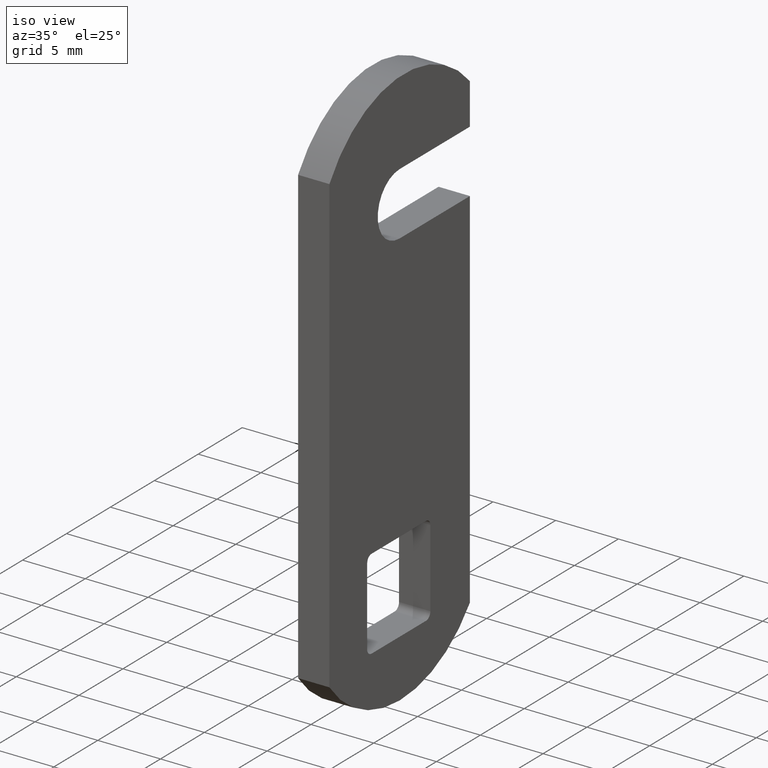
[diagram: clean part render]
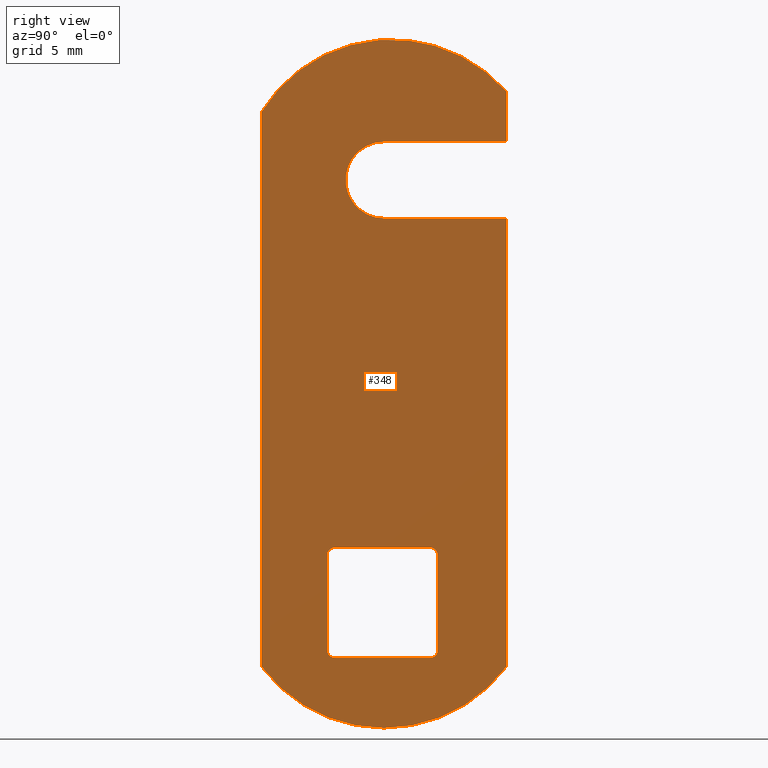
[diagram: tour spotlight — one face highlighted and labeled with its STEP entity id]
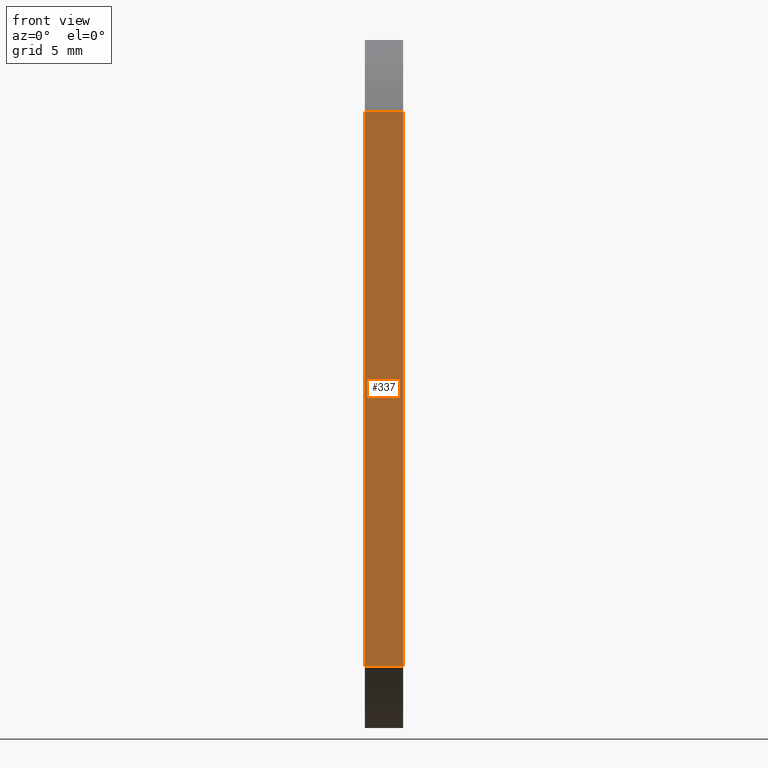
[diagram: tour spotlight — one face highlighted and labeled with its STEP entity id]
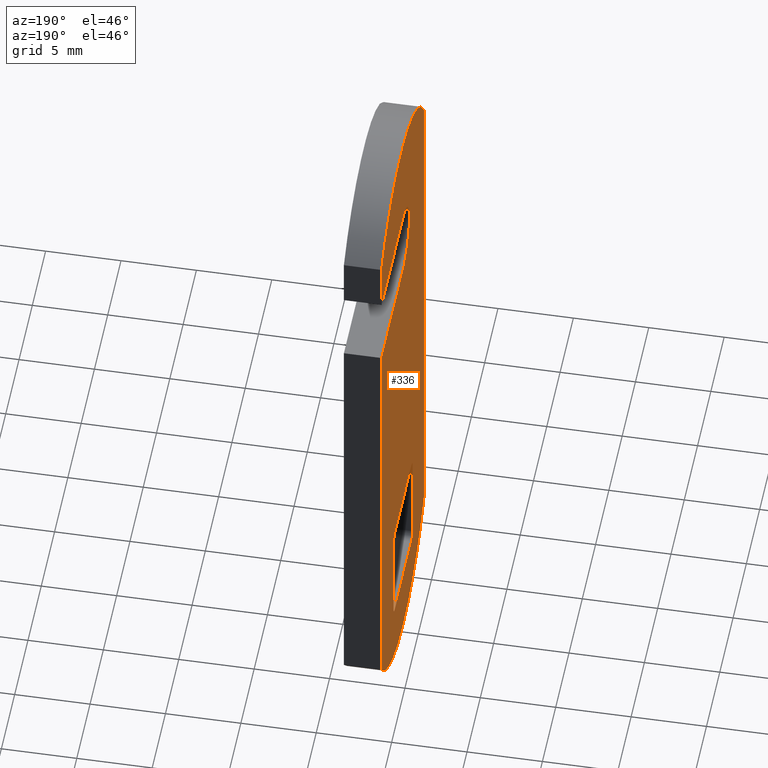
[diagram: tour spotlight — one face highlighted and labeled with its STEP entity id]
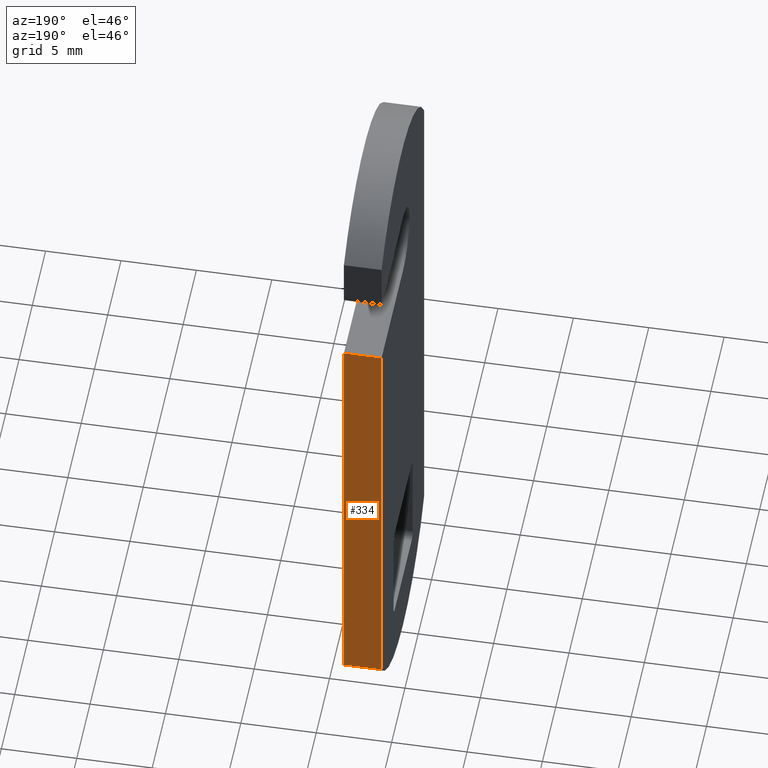
[diagram: tour spotlight — one face highlighted and labeled with its STEP entity id]
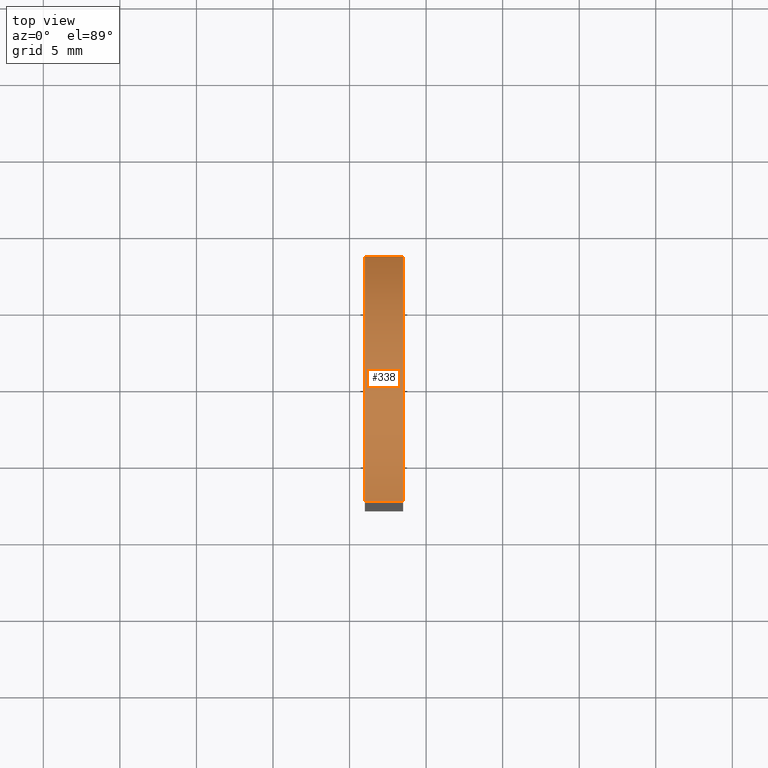
[diagram: tour spotlight — one face highlighted and labeled with its STEP entity id]
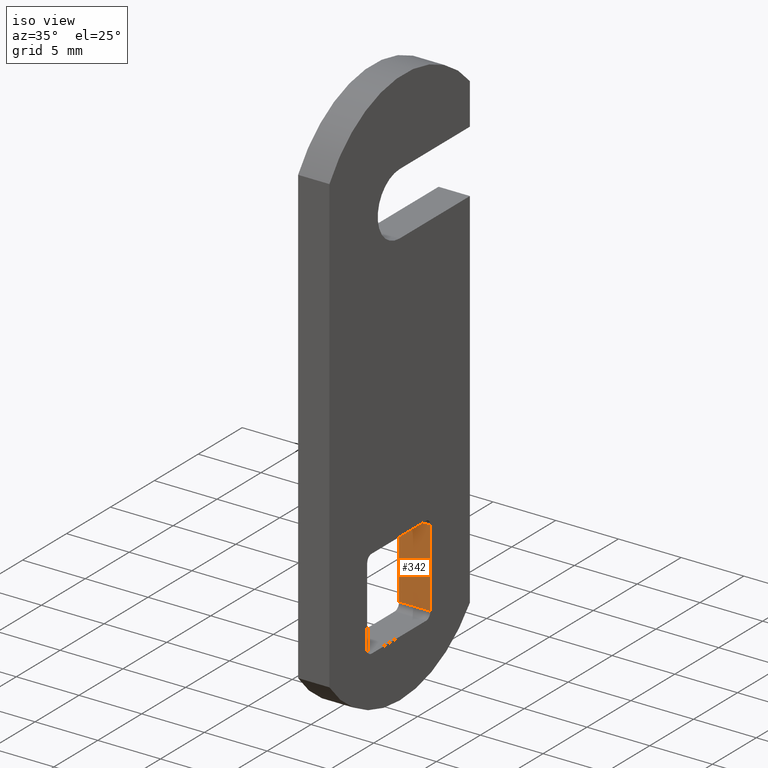
[diagram: tour spotlight — one face highlighted and labeled with its STEP entity id]
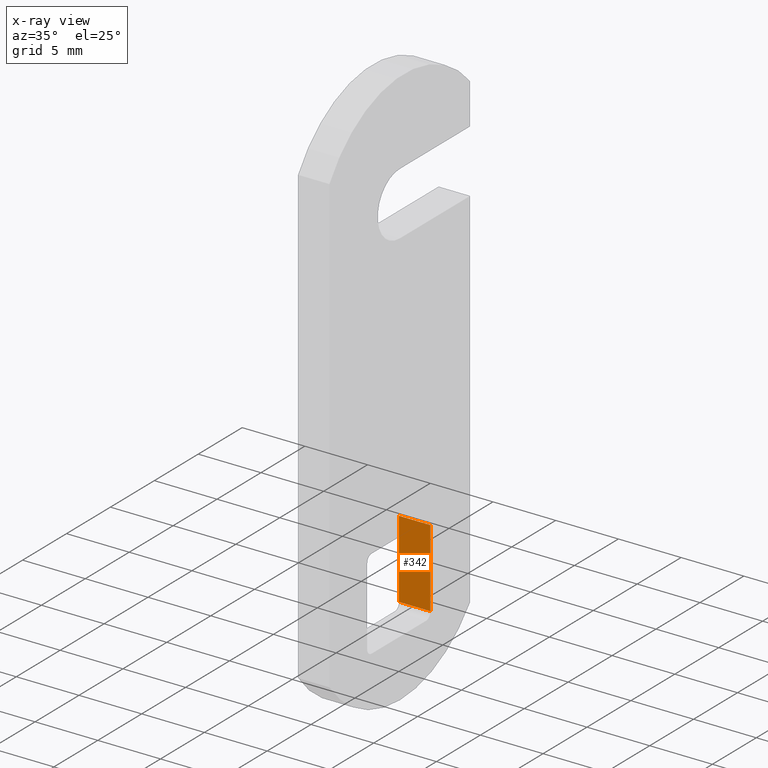
[diagram: x-ray of the same camera — body ghosted, this tour face saturated]
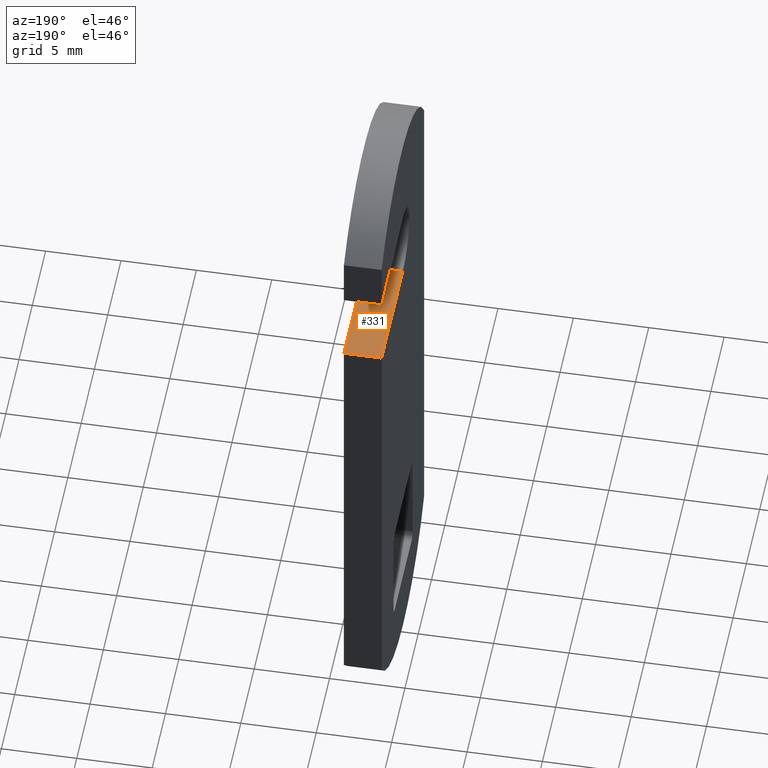
[diagram: tour spotlight — one face highlighted and labeled with its STEP entity id]
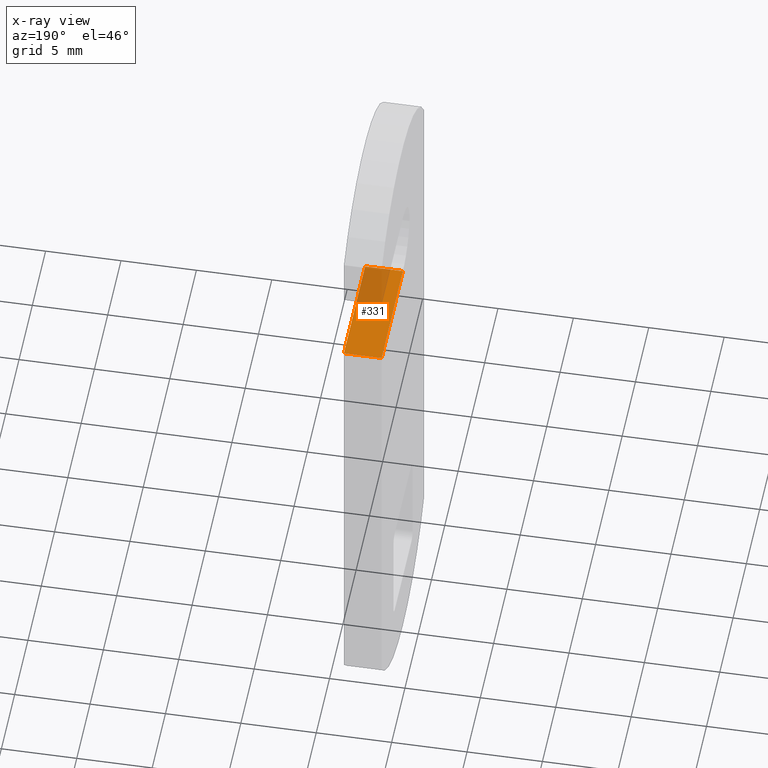
[diagram: x-ray of the same camera — body ghosted, this tour face saturated]
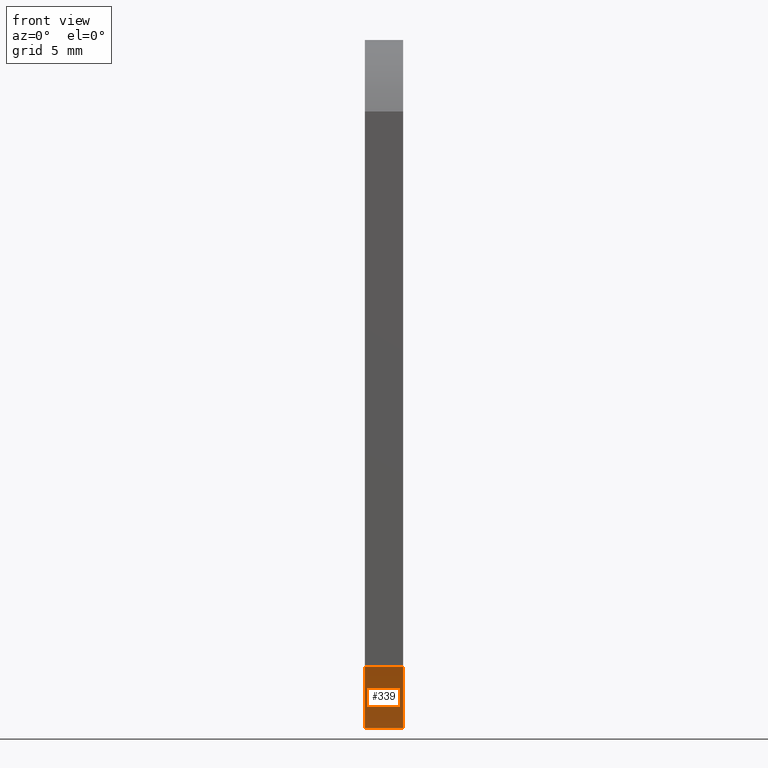
[diagram: tour spotlight — one face highlighted and labeled with its STEP entity id]
A machine part: a face-by-face anatomy tour. The part has 18 B-rep faces; the first image is the clean iso view, then the 8 largest visible faces are spotlighted one at a time (largest first), each with its STEP entity span.

Face 1 — right view, entity #348. In plain terms, the highlighted planar face has unit normal (-1, 0, 0).
Definition (entity closure, byte-faithful):
#16=FACE_BOUND('',#75,.T.);
#18=CIRCLE('',#355,2.5);
#25=CIRCLE('',#367,10.);
#26=CIRCLE('',#369,10.);
#27=CIRCLE('',#372,0.5);
#28=CIRCLE('',#375,0.5);
#29=CIRCLE('',#378,0.5);
#30=CIRCLE('',#381,0.5);
#55=FACE_OUTER_BOUND('',#74,.T.);
#74=EDGE_LOOP('',(#304,#305,#306,#307,#308,#309,#310,#311));
#75=EDGE_LOOP('',(#312,#313,#314,#315,#316,#317,#318,#319));
#78=LINE('',#491,#112);
#82=LINE('',#500,#116);
#84=LINE('',#507,#118);
#89=LINE('',#516,#123);
#95=LINE('',#542,#129);
#98=LINE('',#552,#132);
#102=LINE('',#561,#136);
#105=LINE('',#569,#139);
#108=LINE('',#577,#142);
#112=VECTOR('',#389,8.);
#116=VECTOR('',#395,8.);
#118=VECTOR('',#405,29.2958172199094);
#123=VECTOR('',#412,3.27849939249741);
#129=VECTOR('',#434,36.2674548355886);
#132=VECTOR('',#447,6.19999999999999);
#136=VECTOR('',#457,6.2);
#139=VECTOR('',#466,6.19999999999999);
#142=VECTOR('',#475,6.2);
#146=VERTEX_POINT('',#488);
#147=VERTEX_POINT('',#490);
#150=VERTEX_POINT('',#497);
#151=VERTEX_POINT('',#499);
#152=VERTEX_POINT('',#506);
#155=VERTEX_POINT('',#514);
#166=VERTEX_POINT('',#540);
#167=VERTEX_POINT('',#541);
#168=VERTEX_POINT('',#550);
#169=VERTEX_POINT('',#551);
#170=VERTEX_POINT('',#556);
#171=VERTEX_POINT('',#560);
#172=VERTEX_POINT('',#564);
#173=VERTEX_POINT('',#568);
#174=VERTEX_POINT('',#572);
#175=VERTEX_POINT('',#576);
#178=EDGE_CURVE('',#147,#146,#78,.T.);
#182=EDGE_CURVE('',#151,#150,#82,.T.);
#185=EDGE_CURVE('',#146,#151,#18,.T.);
#186=EDGE_CURVE('',#147,#152,#84,.T.);
#191=EDGE_CURVE('',#155,#150,#89,.T.);
#203=EDGE_CURVE('',#166,#167,#95,.T.);
#206=EDGE_CURVE('',#167,#155,#25,.T.);
#207=EDGE_CURVE('',#152,#166,#26,.T.);
#208=EDGE_CURVE('',#168,#169,#98,.T.);
#211=EDGE_CURVE('',#169,#170,#27,.T.);
#213=EDGE_CURVE('',#170,#171,#102,.T.);
#215=EDGE_CURVE('',#171,#172,#28,.T.);
#217=EDGE_CURVE('',#172,#173,#105,.T.);
#219=EDGE_CURVE('',#173,#174,#29,.T.);
#221=EDGE_CURVE('',#174,#175,#108,.T.);
#223=EDGE_CURVE('',#175,#168,#30,.T.);
#304=ORIENTED_EDGE('',*,*,#182,.T.);
#305=ORIENTED_EDGE('',*,*,#191,.F.);
#306=ORIENTED_EDGE('',*,*,#206,.F.);
#307=ORIENTED_EDGE('',*,*,#203,.F.);
#308=ORIENTED_EDGE('',*,*,#207,.F.);
#309=ORIENTED_EDGE('',*,*,#186,.F.);
#310=ORIENTED_EDGE('',*,*,#178,.T.);
#311=ORIENTED_EDGE('',*,*,#185,.T.);
#312=ORIENTED_EDGE('',*,*,#223,.F.);
#313=ORIENTED_EDGE('',*,*,#221,.F.);
#314=ORIENTED_EDGE('',*,*,#219,.F.);
#315=ORIENTED_EDGE('',*,*,#217,.F.);
#316=ORIENTED_EDGE('',*,*,#215,.F.);
#317=ORIENTED_EDGE('',*,*,#213,.F.);
#318=ORIENTED_EDGE('',*,*,#211,.F.);
#319=ORIENTED_EDGE('',*,*,#208,.F.);
#330=PLANE('',#382);
#348=ADVANCED_FACE('',(#55,#16),#330,.F.);
#355=AXIS2_PLACEMENT_3D('',#504,#401,#402);
#367=AXIS2_PLACEMENT_3D('',#546,#439,#440);
#369=AXIS2_PLACEMENT_3D('',#548,#443,#444);
#372=AXIS2_PLACEMENT_3D('',#557,#452,#453);
#375=AXIS2_PLACEMENT_3D('',#565,#461,#462);
#378=AXIS2_PLACEMENT_3D('',#573,#470,#471);
#381=AXIS2_PLACEMENT_3D('',#580,#479,#480);
#382=AXIS2_PLACEMENT_3D('',#581,#481,#482);
#389=DIRECTION('',(0.,-1.,-8.32667268468864E-16));
#395=DIRECTION('',(0.,1.,8.32667268468864E-16));
#401=DIRECTION('center_axis',(-1.,0.,0.));
#402=DIRECTION('ref_axis',(0.,-1.0547118733939E-15,1.));
#405=DIRECTION('',(0.,0.,-1.));
#412=DIRECTION('',(0.,0.,-1.));
#434=DIRECTION('',(0.,0.,1.));
#439=DIRECTION('center_axis',(-1.,0.,0.));
#440=DIRECTION('ref_axis',(0.,0.,1.));
#443=DIRECTION('center_axis',(-1.,0.,0.));
#444=DIRECTION('ref_axis',(0.,0.,1.));
#447=DIRECTION('',(0.,1.,0.));
#452=DIRECTION('center_axis',(1.,0.,0.));
#453=DIRECTION('ref_axis',(0.,0.,1.));
#457=DIRECTION('',(0.,0.,1.));
#461=DIRECTION('center_axis',(1.,0.,0.));
#462=DIRECTION('ref_axis',(0.,0.,1.));
#466=DIRECTION('',(0.,-1.,0.));
#470=DIRECTION('center_axis',(1.,0.,0.));
#471=DIRECTION('ref_axis',(0.,0.,1.));
#475=DIRECTION('',(0.,0.,-1.));
#479=DIRECTION('center_axis',(1.,0.,0.));
#480=DIRECTION('ref_axis',(0.,0.,1.));
#481=DIRECTION('center_axis',(-1.,0.,0.));
#482=DIRECTION('ref_axis',(0.,0.,1.));
#488=CARTESIAN_POINT('',(-31.5000000687006,0.0995897962627374,25.1));
#490=CARTESIAN_POINT('',(-31.5000000687006,8.09958979626274,25.1));
#491=CARTESIAN_POINT('',(-31.5000000687006,-0.700470203881877,25.1));
#497=CARTESIAN_POINT('',(-31.5000000687006,8.09958979626273,30.1));
#499=CARTESIAN_POINT('',(-31.5000000687006,0.0995897962627332,30.1));
#500=CARTESIAN_POINT('',(-31.5000000687006,-4.70047020388188,30.1));
#504=CARTESIAN_POINT('Origin',(-31.5000000687006,0.0995897962627358,27.6));
#506=CARTESIAN_POINT('',(-31.5000000687006,8.09958979626276,-4.19581721990934));
#507=CARTESIAN_POINT('',(-31.5000000687006,8.09958979626273,27.8041827800906));
#514=CARTESIAN_POINT('',(-31.5000000687006,8.09958979626273,33.3784993924974));
#516=CARTESIAN_POINT('',(-31.5000000687006,8.09958979626273,27.8041827800906));
#540=CARTESIAN_POINT('',(-31.5000000687006,-7.9004102037373,-4.19581721990936));
#541=CARTESIAN_POINT('',(-31.5000000687006,-7.9004102037373,32.0716376156792));
#542=CARTESIAN_POINT('',(-31.5000000687006,-7.9004102037373,-4.19581721990936));
#546=CARTESIAN_POINT('Origin',(-31.5000000687006,0.585131142116536,26.7805518983802));
#548=CARTESIAN_POINT('Origin',(-31.5000000687006,0.099589796262734,1.80418278009063));
#550=CARTESIAN_POINT('',(-31.5000000687006,-3.10000000000002,-3.6));
#551=CARTESIAN_POINT('',(-31.5000000687006,3.09999999999997,-3.6));
#552=CARTESIAN_POINT('',(-31.5000000687006,-3.10000000000002,-3.6));
#556=CARTESIAN_POINT('',(-31.5000000687006,3.59999999999997,-3.10000000000001));
#557=CARTESIAN_POINT('Origin',(-31.5000000687006,3.09999999999997,-3.1));
#560=CARTESIAN_POINT('',(-31.5000000687006,3.59999999999997,3.09999999999999));
#561=CARTESIAN_POINT('',(-31.5000000687006,3.59999999999997,-3.10000000000001));
#564=CARTESIAN_POINT('',(-31.5000000687006,3.09999999999997,3.59999999999999));
#565=CARTESIAN_POINT('Origin',(-31.5000000687006,3.09999999999997,3.09999999999999));
#568=CARTESIAN_POINT('',(-31.5000000687006,-3.10000000000002,3.59999999999999));
#569=CARTESIAN_POINT('',(-31.5000000687006,3.09999999999997,3.59999999999999));
#572=CARTESIAN_POINT('',(-31.5000000687006,-3.60000000000002,3.10000000000001));
#573=CARTESIAN_POINT('Origin',(-31.5000000687006,-3.10000000000002,3.09999999999999));
#576=CARTESIAN_POINT('',(-31.5000000687006,-3.60000000000002,-3.1));
#577=CARTESIAN_POINT('',(-31.5000000687006,-3.60000000000002,3.10000000000001));
#580=CARTESIAN_POINT('Origin',(-31.5000000687006,-3.10000000000002,-3.1));
#581=CARTESIAN_POINT('Origin',(-31.5000000687006,-9.50053020402646,-12.1959372202357));

Face 2 — front view, entity #337. In plain terms, the highlighted planar face has unit normal (0, -1, 0).
Definition (entity closure, byte-faithful):
#44=FACE_OUTER_BOUND('',#63,.T.);
#63=EDGE_LOOP('',(#260,#261,#262,#263));
#90=LINE('',#521,#124);
#95=LINE('',#542,#129);
#96=LINE('',#543,#130);
#97=LINE('',#544,#131);
#124=VECTOR('',#417,36.2674548355886);
#129=VECTOR('',#434,36.2674548355886);
#130=VECTOR('',#435,2.5);
#131=VECTOR('',#436,2.5);
#156=VERTEX_POINT('',#518);
#157=VERTEX_POINT('',#520);
#166=VERTEX_POINT('',#540);
#167=VERTEX_POINT('',#541);
#193=EDGE_CURVE('',#156,#157,#90,.T.);
#203=EDGE_CURVE('',#166,#167,#95,.T.);
#204=EDGE_CURVE('',#167,#157,#96,.F.);
#205=EDGE_CURVE('',#166,#156,#97,.T.);
#260=ORIENTED_EDGE('',*,*,#203,.T.);
#261=ORIENTED_EDGE('',*,*,#204,.T.);
#262=ORIENTED_EDGE('',*,*,#193,.F.);
#263=ORIENTED_EDGE('',*,*,#205,.F.);
#325=PLANE('',#365);
#337=ADVANCED_FACE('',(#44),#325,.T.);
#365=AXIS2_PLACEMENT_3D('',#539,#432,#433);
#417=DIRECTION('',(0.,0.,1.));
#432=DIRECTION('center_axis',(0.,-1.,0.));
#433=DIRECTION('ref_axis',(0.,0.,-1.));
#434=DIRECTION('',(0.,0.,1.));
#435=DIRECTION('',(1.,0.,0.));
#436=DIRECTION('',(-1.,0.,0.));
#518=CARTESIAN_POINT('',(-34.0000000687006,-7.9004102037373,-4.19581721990936));
#520=CARTESIAN_POINT('',(-34.0000000687006,-7.9004102037373,32.0716376156792));
#521=CARTESIAN_POINT('',(-34.0000000687006,-7.9004102037373,-4.19581721990936));
#539=CARTESIAN_POINT('Origin',(-31.5000000687006,-7.9004102037373,-4.19581721990936));
#540=CARTESIAN_POINT('',(-31.5000000687006,-7.9004102037373,-4.19581721990936));
#541=CARTESIAN_POINT('',(-31.5000000687006,-7.9004102037373,32.0716376156792));
#542=CARTESIAN_POINT('',(-31.5000000687006,-7.9004102037373,-4.19581721990936));
#543=CARTESIAN_POINT('',(-31.5000000687006,-7.9004102037373,32.0716376156792));
#544=CARTESIAN_POINT('',(-31.5000000687006,-7.9004102037373,-4.19581721990936));

Face 3 — auxiliary view, entity #336. In plain terms, the highlighted planar face has unit normal (-1, 0, 0).
Definition (entity closure, byte-faithful):
#15=FACE_BOUND('',#62,.T.);
#17=CIRCLE('',#354,2.5);
#19=CIRCLE('',#359,10.);
#20=CIRCLE('',#360,10.);
#21=CIRCLE('',#361,0.5);
#22=CIRCLE('',#362,0.5);
#23=CIRCLE('',#363,0.5);
#24=CIRCLE('',#364,0.5);
#43=FACE_OUTER_BOUND('',#61,.T.);
#61=EDGE_LOOP('',(#244,#245,#246,#247,#248,#249,#250,#251));
#62=EDGE_LOOP('',(#252,#253,#254,#255,#256,#257,#258,#259));
#76=LINE('',#487,#110);
#80=LINE('',#496,#114);
#86=LINE('',#510,#120);
#87=LINE('',#513,#121);
#90=LINE('',#521,#124);
#91=LINE('',#525,#125);
#92=LINE('',#529,#126);
#93=LINE('',#533,#127);
#94=LINE('',#537,#128);
#110=VECTOR('',#387,8.);
#114=VECTOR('',#393,8.);
#120=VECTOR('',#407,29.2958172199094);
#121=VECTOR('',#410,3.27849939249741);
#124=VECTOR('',#417,36.2674548355886);
#125=VECTOR('',#420,6.19999999999999);
#126=VECTOR('',#423,6.2);
#127=VECTOR('',#426,6.19999999999999);
#128=VECTOR('',#429,6.2);
#144=VERTEX_POINT('',#485);
#145=VERTEX_POINT('',#486);
#148=VERTEX_POINT('',#494);
#149=VERTEX_POINT('',#495);
#153=VERTEX_POINT('',#508);
#154=VERTEX_POINT('',#512);
#156=VERTEX_POINT('',#518);
#157=VERTEX_POINT('',#520);
#158=VERTEX_POINT('',#523);
#159=VERTEX_POINT('',#524);
#160=VERTEX_POINT('',#526);
#161=VERTEX_POINT('',#528);
#162=VERTEX_POINT('',#530);
#163=VERTEX_POINT('',#532);
#164=VERTEX_POINT('',#534);
#165=VERTEX_POINT('',#536);
#176=EDGE_CURVE('',#144,#145,#76,.T.);
#180=EDGE_CURVE('',#148,#149,#80,.T.);
#184=EDGE_CURVE('',#149,#144,#17,.T.);
#188=EDGE_CURVE('',#145,#153,#86,.T.);
#189=EDGE_CURVE('',#154,#148,#87,.T.);
#192=EDGE_CURVE('',#153,#156,#19,.T.);
#193=EDGE_CURVE('',#156,#157,#90,.T.);
#194=EDGE_CURVE('',#157,#154,#20,.T.);
#195=EDGE_CURVE('',#158,#159,#91,.T.);
#196=EDGE_CURVE('',#159,#160,#21,.T.);
#197=EDGE_CURVE('',#160,#161,#92,.T.);
#198=EDGE_CURVE('',#161,#162,#22,.T.);
#199=EDGE_CURVE('',#162,#163,#93,.T.);
#200=EDGE_CURVE('',#163,#164,#23,.T.);
#201=EDGE_CURVE('',#164,#165,#94,.T.);
#202=EDGE_CURVE('',#165,#158,#24,.T.);
#244=ORIENTED_EDGE('',*,*,#180,.T.);
#245=ORIENTED_EDGE('',*,*,#184,.T.);
#246=ORIENTED_EDGE('',*,*,#176,.T.);
#247=ORIENTED_EDGE('',*,*,#188,.T.);
#248=ORIENTED_EDGE('',*,*,#192,.T.);
#249=ORIENTED_EDGE('',*,*,#193,.T.);
#250=ORIENTED_EDGE('',*,*,#194,.T.);
#251=ORIENTED_EDGE('',*,*,#189,.T.);
#252=ORIENTED_EDGE('',*,*,#195,.T.);
#253=ORIENTED_EDGE('',*,*,#196,.T.);
#254=ORIENTED_EDGE('',*,*,#197,.T.);
#255=ORIENTED_EDGE('',*,*,#198,.T.);
#256=ORIENTED_EDGE('',*,*,#199,.T.);
#257=ORIENTED_EDGE('',*,*,#200,.T.);
#258=ORIENTED_EDGE('',*,*,#201,.T.);
#259=ORIENTED_EDGE('',*,*,#202,.T.);
#324=PLANE('',#358);
#336=ADVANCED_FACE('',(#43,#15),#324,.T.);
#354=AXIS2_PLACEMENT_3D('',#503,#399,#400);
#358=AXIS2_PLACEMENT_3D('',#517,#413,#414);
#359=AXIS2_PLACEMENT_3D('',#519,#415,#416);
#360=AXIS2_PLACEMENT_3D('',#522,#418,#419);
#361=AXIS2_PLACEMENT_3D('',#527,#421,#422);
#362=AXIS2_PLACEMENT_3D('',#531,#424,#425);
#363=AXIS2_PLACEMENT_3D('',#535,#427,#428);
#364=AXIS2_PLACEMENT_3D('',#538,#430,#431);
#387=DIRECTION('',(0.,1.,8.32667268468864E-16));
#393=DIRECTION('',(0.,-1.,-8.32667268468864E-16));
#399=DIRECTION('center_axis',(1.,0.,0.));
#400=DIRECTION('ref_axis',(0.,-1.0547118733939E-15,1.));
#407=DIRECTION('',(0.,0.,-1.));
#410=DIRECTION('',(0.,0.,-1.));
#413=DIRECTION('center_axis',(-1.,0.,0.));
#414=DIRECTION('ref_axis',(0.,0.,1.));
#415=DIRECTION('center_axis',(-1.,0.,0.));
#416=DIRECTION('ref_axis',(0.,0.,1.));
#417=DIRECTION('',(0.,0.,1.));
#418=DIRECTION('center_axis',(-1.,0.,0.));
#419=DIRECTION('ref_axis',(0.,0.,1.));
#420=DIRECTION('',(0.,1.,0.));
#421=DIRECTION('center_axis',(1.,0.,0.));
#422=DIRECTION('ref_axis',(0.,0.,1.));
#423=DIRECTION('',(0.,0.,1.));
#424=DIRECTION('center_axis',(1.,0.,0.));
#425=DIRECTION('ref_axis',(0.,0.,1.));
#426=DIRECTION('',(0.,-1.,0.));
#427=DIRECTION('center_axis',(1.,0.,0.));
#428=DIRECTION('ref_axis',(0.,0.,1.));
#429=DIRECTION('',(0.,0.,-1.));
#430=DIRECTION('center_axis',(1.,0.,0.));
#431=DIRECTION('ref_axis',(0.,0.,1.));
#485=CARTESIAN_POINT('',(-34.0000000687006,0.0995897962627374,25.1));
#486=CARTESIAN_POINT('',(-34.0000000687006,8.09958979626274,25.1));
#487=CARTESIAN_POINT('',(-34.0000000687006,-0.700470203881877,25.1));
#494=CARTESIAN_POINT('',(-34.0000000687006,8.09958979626273,30.1));
#495=CARTESIAN_POINT('',(-34.0000000687006,0.0995897962627332,30.1));
#496=CARTESIAN_POINT('',(-34.0000000687006,-4.70047020388188,30.1));
#503=CARTESIAN_POINT('Origin',(-34.0000000687006,0.0995897962627358,27.6));
#508=CARTESIAN_POINT('',(-34.0000000687006,8.09958979626276,-4.19581721990934));
#510=CARTESIAN_POINT('',(-34.0000000687006,8.09958979626273,27.8041827800906));
#512=CARTESIAN_POINT('',(-34.0000000687006,8.09958979626273,33.3784993924974));
#513=CARTESIAN_POINT('',(-34.0000000687006,8.09958979626273,27.8041827800906));
#517=CARTESIAN_POINT('Origin',(-34.0000000687006,-9.50053020402646,-12.1959372202357));
#518=CARTESIAN_POINT('',(-34.0000000687006,-7.9004102037373,-4.19581721990936));
#519=CARTESIAN_POINT('Origin',(-34.0000000687006,0.099589796262734,1.80418278009063));
#520=CARTESIAN_POINT('',(-34.0000000687006,-7.9004102037373,32.0716376156792));
#521=CARTESIAN_POINT('',(-34.0000000687006,-7.9004102037373,-4.19581721990936));
#522=CARTESIAN_POINT('Origin',(-34.0000000687006,0.585131142116536,26.7805518983802));
#523=CARTESIAN_POINT('',(-34.0000000687006,-3.10000000000002,-3.6));
#524=CARTESIAN_POINT('',(-34.0000000687006,3.09999999999997,-3.6));
#525=CARTESIAN_POINT('',(-34.0000000687006,-3.10000000000002,-3.6));
#526=CARTESIAN_POINT('',(-34.0000000687006,3.59999999999997,-3.10000000000001));
#527=CARTESIAN_POINT('Origin',(-34.0000000687006,3.09999999999997,-3.1));
#528=CARTESIAN_POINT('',(-34.0000000687006,3.59999999999997,3.09999999999999));
#529=CARTESIAN_POINT('',(-34.0000000687006,3.59999999999997,-3.10000000000001));
#530=CARTESIAN_POINT('',(-34.0000000687006,3.09999999999997,3.59999999999999));
#531=CARTESIAN_POINT('Origin',(-34.0000000687006,3.09999999999997,3.09999999999999));
#532=CARTESIAN_POINT('',(-34.0000000687006,-3.10000000000002,3.59999999999999));
#533=CARTESIAN_POINT('',(-34.0000000687006,3.09999999999997,3.59999999999999));
#534=CARTESIAN_POINT('',(-34.0000000687006,-3.60000000000002,3.10000000000001));
#535=CARTESIAN_POINT('Origin',(-34.0000000687006,-3.10000000000002,3.09999999999999));
#536=CARTESIAN_POINT('',(-34.0000000687006,-3.60000000000002,-3.1));
#537=CARTESIAN_POINT('',(-34.0000000687006,-3.60000000000002,3.10000000000001));
#538=CARTESIAN_POINT('Origin',(-34.0000000687006,-3.10000000000002,-3.1));

Face 4 — auxiliary view, entity #334. In plain terms, the highlighted planar face has unit normal (0, 1, 0).
Definition (entity closure, byte-faithful):
#41=FACE_OUTER_BOUND('',#59,.T.);
#59=EDGE_LOOP('',(#236,#237,#238,#239));
#79=LINE('',#492,#113);
#84=LINE('',#507,#118);
#85=LINE('',#509,#119);
#86=LINE('',#510,#120);
#113=VECTOR('',#390,2.5);
#118=VECTOR('',#405,29.2958172199094);
#119=VECTOR('',#406,2.5);
#120=VECTOR('',#407,29.2958172199094);
#145=VERTEX_POINT('',#486);
#147=VERTEX_POINT('',#490);
#152=VERTEX_POINT('',#506);
#153=VERTEX_POINT('',#508);
#179=EDGE_CURVE('',#145,#147,#79,.T.);
#186=EDGE_CURVE('',#147,#152,#84,.T.);
#187=EDGE_CURVE('',#152,#153,#85,.T.);
#188=EDGE_CURVE('',#145,#153,#86,.T.);
#236=ORIENTED_EDGE('',*,*,#179,.T.);
#237=ORIENTED_EDGE('',*,*,#186,.T.);
#238=ORIENTED_EDGE('',*,*,#187,.T.);
#239=ORIENTED_EDGE('',*,*,#188,.F.);
#322=PLANE('',#356);
#334=ADVANCED_FACE('',(#41),#322,.T.);
#356=AXIS2_PLACEMENT_3D('',#505,#403,#404);
#390=DIRECTION('',(1.,0.,0.));
#403=DIRECTION('center_axis',(0.,1.,0.));
#404=DIRECTION('ref_axis',(0.,0.,1.));
#405=DIRECTION('',(0.,0.,-1.));
#406=DIRECTION('',(-1.,0.,0.));
#407=DIRECTION('',(0.,0.,-1.));
#486=CARTESIAN_POINT('',(-34.0000000687006,8.09958979626274,25.1));
#490=CARTESIAN_POINT('',(-31.5000000687006,8.09958979626274,25.1));
#492=CARTESIAN_POINT('',(-31.5000000687006,8.09958979626273,25.1));
#505=CARTESIAN_POINT('Origin',(-31.5000000687006,8.09958979626273,27.8041827800906));
#506=CARTESIAN_POINT('',(-31.5000000687006,8.09958979626276,-4.19581721990934));
#507=CARTESIAN_POINT('',(-31.5000000687006,8.09958979626273,27.8041827800906));
#508=CARTESIAN_POINT('',(-34.0000000687006,8.09958979626276,-4.19581721990934));
#509=CARTESIAN_POINT('',(-31.5000000687006,8.09958979626276,-4.19581721990934));
#510=CARTESIAN_POINT('',(-34.0000000687006,8.09958979626273,27.8041827800906));

Face 5 — top view, entity #338. In plain terms, the highlighted cylindrical surface (partial cylindrical patch) has radius 10 mm, axis along (-1, 0, 0).
Definition (entity closure, byte-faithful):
#20=CIRCLE('',#360,10.);
#25=CIRCLE('',#367,10.);
#32=CYLINDRICAL_SURFACE('',#366,10.);
#45=FACE_OUTER_BOUND('',#64,.T.);
#64=EDGE_LOOP('',(#264,#265,#266,#267));
#88=LINE('',#515,#122);
#96=LINE('',#543,#130);
#122=VECTOR('',#411,2.5);
#130=VECTOR('',#435,2.5);
#154=VERTEX_POINT('',#512);
#155=VERTEX_POINT('',#514);
#157=VERTEX_POINT('',#520);
#167=VERTEX_POINT('',#541);
#190=EDGE_CURVE('',#155,#154,#88,.T.);
#194=EDGE_CURVE('',#157,#154,#20,.T.);
#204=EDGE_CURVE('',#167,#157,#96,.F.);
#206=EDGE_CURVE('',#167,#155,#25,.T.);
#264=ORIENTED_EDGE('',*,*,#206,.T.);
#265=ORIENTED_EDGE('',*,*,#190,.T.);
#266=ORIENTED_EDGE('',*,*,#194,.F.);
#267=ORIENTED_EDGE('',*,*,#204,.F.);
#338=ADVANCED_FACE('',(#45),#32,.T.);
#360=AXIS2_PLACEMENT_3D('',#522,#418,#419);
#366=AXIS2_PLACEMENT_3D('',#545,#437,#438);
#367=AXIS2_PLACEMENT_3D('',#546,#439,#440);
#411=DIRECTION('',(-1.,0.,0.));
#418=DIRECTION('center_axis',(-1.,0.,0.));
#419=DIRECTION('ref_axis',(0.,0.,1.));
#435=DIRECTION('',(1.,0.,0.));
#437=DIRECTION('center_axis',(-1.,0.,0.));
#438=DIRECTION('ref_axis',(0.,-0.800000000000001,0.599999999999999));
#439=DIRECTION('center_axis',(-1.,0.,0.));
#440=DIRECTION('ref_axis',(0.,0.,1.));
#512=CARTESIAN_POINT('',(-34.0000000687006,8.09958979626273,33.3784993924974));
#514=CARTESIAN_POINT('',(-31.5000000687006,8.09958979626273,33.3784993924974));
#515=CARTESIAN_POINT('',(-31.5000000687006,8.09958979626273,33.3784993924974));
#520=CARTESIAN_POINT('',(-34.0000000687006,-7.9004102037373,32.0716376156792));
#522=CARTESIAN_POINT('Origin',(-34.0000000687006,0.585131142116536,26.7805518983802));
#541=CARTESIAN_POINT('',(-31.5000000687006,-7.9004102037373,32.0716376156792));
#543=CARTESIAN_POINT('',(-31.5000000687006,-7.9004102037373,32.0716376156792));
#545=CARTESIAN_POINT('Origin',(-31.5000000687006,0.585131142116536,26.7805518983802));
#546=CARTESIAN_POINT('Origin',(-31.5000000687006,0.585131142116536,26.7805518983802));

Face 6 — iso view, entity #342. An x-ray twin of the same camera follows (body ghosted, this face saturated) — the face is partly hidden behind the body. In plain terms, the highlighted planar face has unit normal (0, -1, 0).
Definition (entity closure, byte-faithful):
#49=FACE_OUTER_BOUND('',#68,.T.);
#68=EDGE_LOOP('',(#280,#281,#282,#283));
#92=LINE('',#529,#126);
#101=LINE('',#558,#135);
#102=LINE('',#561,#136);
#103=LINE('',#562,#137);
#126=VECTOR('',#423,6.2);
#135=VECTOR('',#454,2.5);
#136=VECTOR('',#457,6.2);
#137=VECTOR('',#458,2.5);
#160=VERTEX_POINT('',#526);
#161=VERTEX_POINT('',#528);
#170=VERTEX_POINT('',#556);
#171=VERTEX_POINT('',#560);
#197=EDGE_CURVE('',#160,#161,#92,.T.);
#212=EDGE_CURVE('',#170,#160,#101,.T.);
#213=EDGE_CURVE('',#170,#171,#102,.T.);
#214=EDGE_CURVE('',#171,#161,#103,.T.);
#280=ORIENTED_EDGE('',*,*,#213,.T.);
#281=ORIENTED_EDGE('',*,*,#214,.T.);
#282=ORIENTED_EDGE('',*,*,#197,.F.);
#283=ORIENTED_EDGE('',*,*,#212,.F.);
#327=PLANE('',#373);
#342=ADVANCED_FACE('',(#49),#327,.T.);
#373=AXIS2_PLACEMENT_3D('',#559,#455,#456);
#423=DIRECTION('',(0.,0.,1.));
#454=DIRECTION('',(-1.,0.,0.));
#455=DIRECTION('center_axis',(0.,-1.,0.));
#456=DIRECTION('ref_axis',(0.,0.,-1.));
#457=DIRECTION('',(0.,0.,1.));
#458=DIRECTION('',(-1.,0.,0.));
#526=CARTESIAN_POINT('',(-34.0000000687006,3.59999999999997,-3.10000000000001));
#528=CARTESIAN_POINT('',(-34.0000000687006,3.59999999999997,3.09999999999999));
#529=CARTESIAN_POINT('',(-34.0000000687006,3.59999999999997,-3.10000000000001));
#556=CARTESIAN_POINT('',(-31.5000000687006,3.59999999999997,-3.10000000000001));
#558=CARTESIAN_POINT('',(-31.5000000687006,3.59999999999997,-3.10000000000001));
#559=CARTESIAN_POINT('Origin',(-31.5000000687006,3.59999999999997,-3.10000000000001));
#560=CARTESIAN_POINT('',(-31.5000000687006,3.59999999999997,3.09999999999999));
#561=CARTESIAN_POINT('',(-31.5000000687006,3.59999999999997,-3.10000000000001));
#562=CARTESIAN_POINT('',(-31.5000000687006,3.59999999999997,3.09999999999999));

Face 7 — auxiliary view, entity #331. An x-ray twin of the same camera follows (body ghosted, this face saturated) — the face is partly hidden behind the body. In plain terms, the highlighted planar face has unit normal (0, 0, -1).
Definition (entity closure, byte-faithful):
#38=FACE_OUTER_BOUND('',#56,.T.);
#56=EDGE_LOOP('',(#224,#225,#226,#227));
#76=LINE('',#487,#110);
#77=LINE('',#489,#111);
#78=LINE('',#491,#112);
#79=LINE('',#492,#113);
#110=VECTOR('',#387,8.);
#111=VECTOR('',#388,2.5);
#112=VECTOR('',#389,8.);
#113=VECTOR('',#390,2.5);
#144=VERTEX_POINT('',#485);
#145=VERTEX_POINT('',#486);
#146=VERTEX_POINT('',#488);
#147=VERTEX_POINT('',#490);
#176=EDGE_CURVE('',#144,#145,#76,.T.);
#177=EDGE_CURVE('',#146,#144,#77,.T.);
#178=EDGE_CURVE('',#147,#146,#78,.T.);
#179=EDGE_CURVE('',#145,#147,#79,.T.);
#224=ORIENTED_EDGE('',*,*,#176,.F.);
#225=ORIENTED_EDGE('',*,*,#177,.F.);
#226=ORIENTED_EDGE('',*,*,#178,.F.);
#227=ORIENTED_EDGE('',*,*,#179,.F.);
#320=PLANE('',#351);
#331=ADVANCED_FACE('',(#38),#320,.F.);
#351=AXIS2_PLACEMENT_3D('',#484,#385,#386);
#385=DIRECTION('center_axis',(0.,8.32667268468864E-16,-1.));
#386=DIRECTION('ref_axis',(0.,-1.,-7.105427357601E-16));
#387=DIRECTION('',(0.,1.,8.32667268468864E-16));
#388=DIRECTION('',(-1.,0.,0.));
#389=DIRECTION('',(0.,-1.,-8.32667268468864E-16));
#390=DIRECTION('',(1.,0.,0.));
#484=CARTESIAN_POINT('Origin',(-31.5000000687006,8.09958979626274,25.1));
#485=CARTESIAN_POINT('',(-34.0000000687006,0.0995897962627374,25.1));
#486=CARTESIAN_POINT('',(-34.0000000687006,8.09958979626274,25.1));
#487=CARTESIAN_POINT('',(-34.0000000687006,-0.700470203881877,25.1));
#488=CARTESIAN_POINT('',(-31.5000000687006,0.0995897962627374,25.1));
#489=CARTESIAN_POINT('',(-31.5000000687006,0.0995897962627374,25.1));
#490=CARTESIAN_POINT('',(-31.5000000687006,8.09958979626274,25.1));
#491=CARTESIAN_POINT('',(-31.5000000687006,-0.700470203881877,25.1));
#492=CARTESIAN_POINT('',(-31.5000000687006,8.09958979626273,25.1));

Face 8 — front view, entity #339. In plain terms, the highlighted cylindrical surface (partial cylindrical patch) has radius 10 mm, axis along (-1, 0, 0).
Definition (entity closure, byte-faithful):
#19=CIRCLE('',#359,10.);
#26=CIRCLE('',#369,10.);
#33=CYLINDRICAL_SURFACE('',#368,10.);
#46=FACE_OUTER_BOUND('',#65,.T.);
#65=EDGE_LOOP('',(#268,#269,#270,#271));
#85=LINE('',#509,#119);
#97=LINE('',#544,#131);
#119=VECTOR('',#406,2.5);
#131=VECTOR('',#436,2.5);
#152=VERTEX_POINT('',#506);
#153=VERTEX_POINT('',#508);
#156=VERTEX_POINT('',#518);
#166=VERTEX_POINT('',#540);
#187=EDGE_CURVE('',#152,#153,#85,.T.);
#192=EDGE_CURVE('',#153,#156,#19,.T.);
#205=EDGE_CURVE('',#166,#156,#97,.T.);
#207=EDGE_CURVE('',#152,#166,#26,.T.);
#268=ORIENTED_EDGE('',*,*,#207,.T.);
#269=ORIENTED_EDGE('',*,*,#205,.T.);
#270=ORIENTED_EDGE('',*,*,#192,.F.);
#271=ORIENTED_EDGE('',*,*,#187,.F.);
#339=ADVANCED_FACE('',(#46),#33,.T.);
#359=AXIS2_PLACEMENT_3D('',#519,#415,#416);
#368=AXIS2_PLACEMENT_3D('',#547,#441,#442);
#369=AXIS2_PLACEMENT_3D('',#548,#443,#444);
#406=DIRECTION('',(-1.,0.,0.));
#415=DIRECTION('center_axis',(-1.,0.,0.));
#416=DIRECTION('ref_axis',(0.,0.,1.));
#436=DIRECTION('',(-1.,0.,0.));
#441=DIRECTION('center_axis',(-1.,0.,0.));
#442=DIRECTION('ref_axis',(0.,0.,1.));
#443=DIRECTION('center_axis',(-1.,0.,0.));
#444=DIRECTION('ref_axis',(0.,0.,1.));
#506=CARTESIAN_POINT('',(-31.5000000687006,8.09958979626276,-4.19581721990934));
#508=CARTESIAN_POINT('',(-34.0000000687006,8.09958979626276,-4.19581721990934));
#509=CARTESIAN_POINT('',(-31.5000000687006,8.09958979626276,-4.19581721990934));
#518=CARTESIAN_POINT('',(-34.0000000687006,-7.9004102037373,-4.19581721990936));
#519=CARTESIAN_POINT('Origin',(-34.0000000687006,0.099589796262734,1.80418278009063));
#540=CARTESIAN_POINT('',(-31.5000000687006,-7.9004102037373,-4.19581721990936));
#544=CARTESIAN_POINT('',(-31.5000000687006,-7.9004102037373,-4.19581721990936));
#547=CARTESIAN_POINT('Origin',(-31.5000000687006,0.099589796262734,1.80418278009063));
#548=CARTESIAN_POINT('Origin',(-31.5000000687006,0.099589796262734,1.80418278009063));